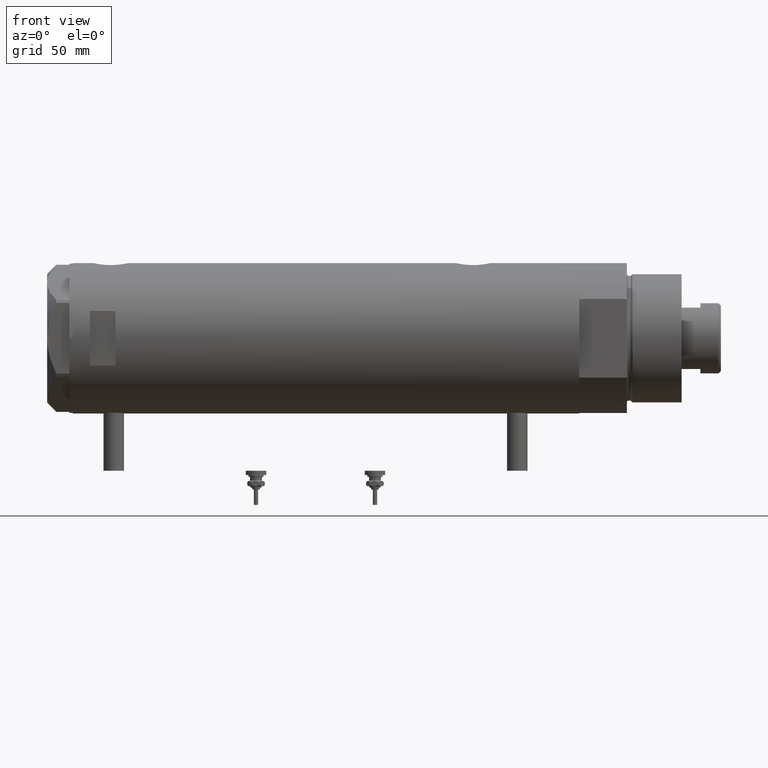
[diagram: clean part render]
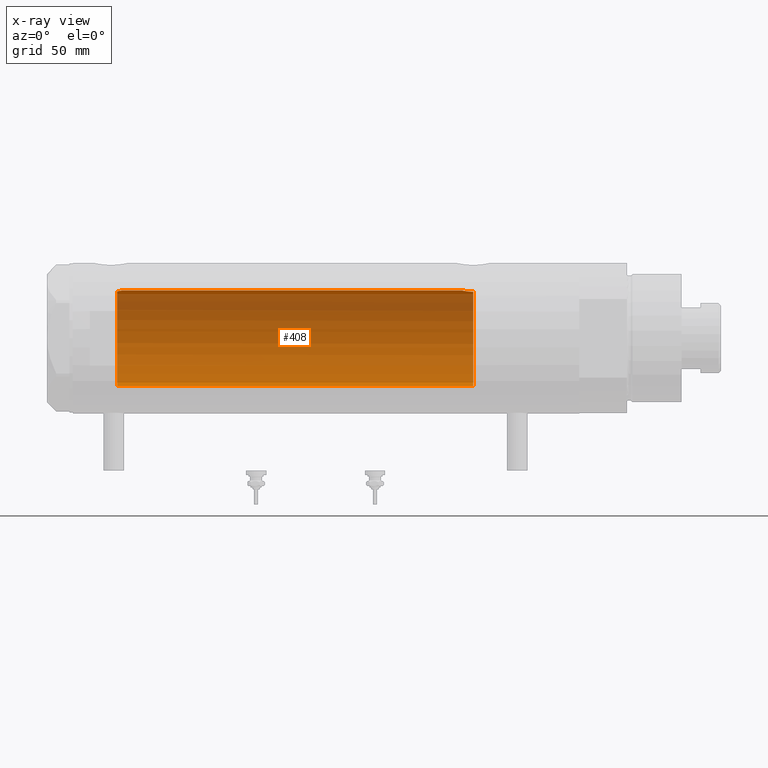
[diagram: x-ray — body ghosted, one internal face saturated and labeled with its STEP entity id]
A machine part, front view, then the same camera in x-ray: the body is ghosted and one INTERNAL B-rep face — a face not visible from any outside direction — is saturated and labeled: STEP entity #408.
In plain terms, the highlighted cylindrical surface (partial cylindrical patch) has radius 28 mm, axis along (1, 0, -0).
Its self-contained STEP definition (entity closure, byte-faithful):
#7 = CARTESIAN_POINT ( 'NONE',  ( 27.70785054350542609, 4.050475470458774652, -80.89631279652928697 ) ) ;
#112 = DIRECTION ( 'NONE',  ( -0.000000000000000000, -0.000000000000000000, -1.000000000000000000 ) ) ;
#130 = CARTESIAN_POINT ( 'NONE',  ( 27.57921322802619457, 4.838471943606464265, -81.63541026849053139 ) ) ;
#181 = VERTEX_POINT ( 'NONE', #4940 ) ;
#223 = CARTESIAN_POINT ( 'NONE',  ( 28.00000000000000000, 0.4344375524774752306, -79.51999999999999602 ) ) ;
#315 = EDGE_CURVE ( 'NONE', #181, #3575, #4687, .T. ) ;
#399 = CARTESIAN_POINT ( 'NONE',  ( 27.52730847012277948, 5.126288527110434146, 121.7662339946191281 ) ) ;
#408 = ADVANCED_FACE ( 'NONE', ( #2333 ), #5213, .F. ) ;
#453 = CARTESIAN_POINT ( 'NONE',  ( 27.21605408577812568, 6.579240077698946365, -86.20000000000000284 ) ) ;
#752 = VERTEX_POINT ( 'NONE', #4317 ) ;
#862 = ORIENTED_EDGE ( 'NONE', *, *, #2197, .F. ) ;
#895 = CARTESIAN_POINT ( 'NONE',  ( 27.59012538417911031, 4.776664836238034617, 121.3667529856984544 ) ) ;
#949 = CARTESIAN_POINT ( 'NONE',  ( 27.23306259439847921, 6.508606919525676382, -85.10931986330979271 ) ) ;
#957 = CARTESIAN_POINT ( 'NONE',  ( 28.00000000000000000, 0.5407212781083797770, 119.3200000000000216 ) ) ;
#981 = CARTESIAN_POINT ( 'NONE',  ( 28.00000000000000000, 3.429011037612589276E-15, 148.1999999999999886 ) ) ;
#982 = DIRECTION ( 'NONE',  ( -1.000000000000000000, 0.000000000000000000, 0.000000000000000000 ) ) ;
#1026 = EDGE_CURVE ( 'NONE', #181, #1325, #2030, .T. ) ;
#1128 = LINE ( 'NONE', #1600, #5208 ) ;
#1199 = CARTESIAN_POINT ( 'NONE',  ( 0.000000000000000000, 0.000000000000000000, 122.2000000000000028 ) ) ;
#1325 = VERTEX_POINT ( 'NONE', #2523 ) ;
#1364 = DIRECTION ( 'NONE',  ( -0.000000000000000000, -0.000000000000000000, -1.000000000000000000 ) ) ;
#1401 = CARTESIAN_POINT ( 'NONE',  ( 27.22604017942137133, 6.537820648187913086, -85.32472952793342813 ) ) ;
#1432 = CARTESIAN_POINT ( 'NONE',  ( 27.65669575048418238, 4.382057994727794004, -81.17233761202035680 ) ) ;
#1448 = CARTESIAN_POINT ( 'NONE',  ( 28.00000000000000000, 8.058211040172173087E-16, -79.52000000000001023 ) ) ;
#1475 = AXIS2_PLACEMENT_3D ( 'NONE', #2372, #112, #2893 ) ;
#1493 = CARTESIAN_POINT ( 'NONE',  ( 27.21525044627864176, 6.582564457995945695, -85.98128103916469911 ) ) ;
#1560 = VECTOR ( 'NONE', #1364, 1000.000000000000000 ) ;
#1600 = CARTESIAN_POINT ( 'NONE',  ( -28.00000000000000000, 0.000000000000000000, 148.1999999999999886 ) ) ;
#1604 = ORIENTED_EDGE ( 'NONE', *, *, #1026, .F. ) ;
#1709 = DIRECTION ( 'NONE',  ( 0.000000000000000000, 0.000000000000000000, -1.000000000000000000 ) ) ;
#1816 = CARTESIAN_POINT ( 'NONE',  ( 27.93969014165222120, 1.855286977351521038, 119.5812411240566462 ) ) ;
#1837 = CARTESIAN_POINT ( 'NONE',  ( 27.28989504668421162, 6.268149480003695651, -84.05093353430703473 ) ) ;
#1843 = CARTESIAN_POINT ( 'NONE',  ( 27.46622653369042766, 5.441176343402222670, 122.2000000000000028 ) ) ;
#1929 = LINE ( 'NONE', #981, #1560 ) ;
#2030 = B_SPLINE_CURVE_WITH_KNOTS ( 'NONE', 3,
 ( #1843, #5970, #399, #895, #2220, #2336, #3703, #5613, #2246, #4074, #1816, #2738, #957, #3226 ),
 .UNSPECIFIED., .F., .F.,
 ( 4, 2, 2, 2, 2, 2, 4 ),
 ( 0.03488855882532452407, 0.03568791961119571754, 0.03648728039706691101, 0.03808600196880932570, 0.03888536275468051917, 0.03968472354055171958, 0.04128344511229410652 ),
 .UNSPECIFIED. ) ;
#2032 = CARTESIAN_POINT ( 'NONE',  ( 27.98989376185446432, 0.8673308354119230179, -79.56259295538819742 ) ) ;
#2197 = EDGE_CURVE ( 'NONE', #4247, #5323, #5461, .T. ) ;
#2210 = EDGE_CURVE ( 'NONE', #1325, #4247, #1929, .T. ) ;
#2220 = CARTESIAN_POINT ( 'NONE',  ( 27.62184089756353345, 4.590621453796798868, 121.1784729639471863 ) ) ;
#2246 = CARTESIAN_POINT ( 'NONE',  ( 27.87926027245440963, 2.609415915507857342, 119.8536592036424508 ) ) ;
#2333 = FACE_OUTER_BOUND ( 'NONE', #5152, .T. ) ;
#2336 = CARTESIAN_POINT ( 'NONE',  ( 27.71586615897684069, 3.998795151939223746, 120.6476739562574778 ) ) ;
#2372 = CARTESIAN_POINT ( 'NONE',  ( 0.000000000000000000, 0.000000000000000000, 148.1999999999999886 ) ) ;
#2416 = DIRECTION ( 'NONE',  ( -0.000000000000000000, -0.000000000000000000, -1.000000000000000000 ) ) ;
#2494 = ORIENTED_EDGE ( 'NONE', *, *, #3827, .T. ) ;
#2523 = CARTESIAN_POINT ( 'NONE',  ( 28.00000000000000000, 0.000000000000000000, 119.3200000000000074 ) ) ;
#2546 = AXIS2_PLACEMENT_3D ( 'NONE', #3569, #1709, #982 ) ;
#2738 = CARTESIAN_POINT ( 'NONE',  ( 27.98435453724556510, 1.072101232728050801, 119.3856609737169094 ) ) ;
#2824 = CARTESIAN_POINT ( 'NONE',  ( 27.80267334785859390, 3.323944738624906581, -80.41709962017577595 ) ) ;
#2843 = CARTESIAN_POINT ( 'NONE',  ( 27.21605408577812568, 6.579240077698946365, -86.20000000000000284 ) ) ;
#2860 = CARTESIAN_POINT ( 'NONE',  ( 27.21712162367727927, 6.574850051620751756, -85.76016190408793705 ) ) ;
#2893 = DIRECTION ( 'NONE',  ( -1.000000000000000000, 0.000000000000000000, 0.000000000000000000 ) ) ;
#2983 = CARTESIAN_POINT ( 'NONE',  ( -28.00000000000000000, 0.000000000000000000, 122.2000000000000028 ) ) ;
#2994 = CARTESIAN_POINT ( 'NONE',  ( 27.94984428957576483, 1.729919005741095805, -79.73624844305086867 ) ) ;
#3221 = CARTESIAN_POINT ( 'NONE',  ( 27.36295003163000672, 5.941130795499228512, -83.23794896005176724 ) ) ;
#3226 = CARTESIAN_POINT ( 'NONE',  ( 28.00000000000000000, 0.000000000000000000, 119.3200000000000074 ) ) ;
#3269 = ORIENTED_EDGE ( 'NONE', *, *, #2210, .F. ) ;
#3288 = CARTESIAN_POINT ( 'NONE',  ( 27.84585502960274539, 2.940342086136629618, -80.20946914370765057 ) ) ;
#3409 = EDGE_CURVE ( 'NONE', #752, #5323, #4295, .T. ) ;
#3416 = CARTESIAN_POINT ( 'NONE',  ( 28.00000000000000000, 8.058211040172173087E-16, -79.52000000000001023 ) ) ;
#3536 = DIRECTION ( 'NONE',  ( 1.000000000000000000, 0.000000000000000000, 0.000000000000000000 ) ) ;
#3569 = CARTESIAN_POINT ( 'NONE',  ( 0.000000000000000000, 0.000000000000000000, -86.20000000000000284 ) ) ;
#3575 = VERTEX_POINT ( 'NONE', #2983 ) ;
#3614 = ORIENTED_EDGE ( 'NONE', *, *, #315, .T. ) ;
#3703 = CARTESIAN_POINT ( 'NONE',  ( 27.77752716845532532, 3.554080867558345957, 120.3370280902186238 ) ) ;
#3759 = CARTESIAN_POINT ( 'NONE',  ( 27.77951318121830226, 3.511620812961476545, -80.53115835401439426 ) ) ;
#3827 = EDGE_CURVE ( 'NONE', #3575, #752, #1128, .T. ) ;
#4074 = CARTESIAN_POINT ( 'NONE',  ( 27.92131942247210219, 2.112374604004422007, 119.6625997420270977 ) ) ;
#4183 = CARTESIAN_POINT ( 'NONE',  ( 27.92057377942992957, 2.145335874642060769, -79.86449057456586331 ) ) ;
#4247 = VERTEX_POINT ( 'NONE', #1448 ) ;
#4248 = CARTESIAN_POINT ( 'NONE',  ( 27.40633791352276205, 5.740289853568793177, -82.85469713442370221 ) ) ;
#4295 = CIRCLE ( 'NONE', #2546, 28.00000000000000000 ) ;
#4317 = CARTESIAN_POINT ( 'NONE',  ( -28.00000000000000000, 0.000000000000000000, -86.20000000000000284 ) ) ;
#4687 = CIRCLE ( 'NONE', #5489, 28.00000000000000000 ) ;
#4940 = CARTESIAN_POINT ( 'NONE',  ( 27.46622653369042766, 5.441176343402222670, 122.2000000000000028 ) ) ;
#5110 = CARTESIAN_POINT ( 'NONE',  ( 27.26132124301008730, 6.389601967157238604, -84.46983701249828869 ) ) ;
#5143 = CARTESIAN_POINT ( 'NONE',  ( 27.50226589723265747, 5.257822516958271741, -82.13779315141979964 ) ) ;
#5152 = EDGE_LOOP ( 'NONE', ( #3269, #1604, #3614, #2494, #5822, #862 ) ) ;
#5169 = CARTESIAN_POINT ( 'NONE',  ( 27.47751794615730248, 5.385218554237045652, -82.31285718566402920 ) ) ;
#5208 = VECTOR ( 'NONE', #2416, 1000.000000000000000 ) ;
#5213 = CYLINDRICAL_SURFACE ( 'NONE', #1475, 28.00000000000000000 ) ;
#5242 = CARTESIAN_POINT ( 'NONE',  ( 27.86588799758911250, 2.744542339393451158, -80.11578757899563641 ) ) ;
#5323 = VERTEX_POINT ( 'NONE', #2843 ) ;
#5461 = B_SPLINE_CURVE_WITH_KNOTS ( 'NONE', 3,
 ( #3416, #223, #2032, #2994, #4183, #5242, #3288, #2824, #3759, #7, #1432, #130, #5702, #5143, #5169, #4248, #3221, #1837, #5110, #949, #1401, #2860, #1493, #453 ),
 .UNSPECIFIED., .F., .F.,
 ( 4, 2, 2, 2, 2, 2, 2, 2, 2, 2, 2, 4 ),
 ( 0.02064447638625020037, 0.02194711032043803953, 0.02324974425462587868, 0.02390106122171980693, 0.02455237818881373518, 0.02585501212300159168, 0.02650632909009551647, 0.02715764605718944472, 0.02846027999137729775, 0.02976291392556515425, 0.03041423089265907903, 0.03106554785975300728 ),
 .UNSPECIFIED. ) ;
#5489 = AXIS2_PLACEMENT_3D ( 'NONE', #1199, #5883, #3536 ) ;
#5613 = CARTESIAN_POINT ( 'NONE',  ( 27.85549123290575935, 2.850830541327390666, 119.9637046868290611 ) ) ;
#5702 = CARTESIAN_POINT ( 'NONE',  ( 27.55311958554909069, 4.984468698502469763, -81.79897075987406652 ) ) ;
#5822 = ORIENTED_EDGE ( 'NONE', *, *, #3409, .T. ) ;
#5883 = DIRECTION ( 'NONE',  ( 0.000000000000000000, 0.000000000000000000, 1.000000000000000000 ) ) ;
#5970 = CARTESIAN_POINT ( 'NONE',  ( 27.49602064413224056, 5.290780227724648732, 121.9788292468204673 ) ) ;